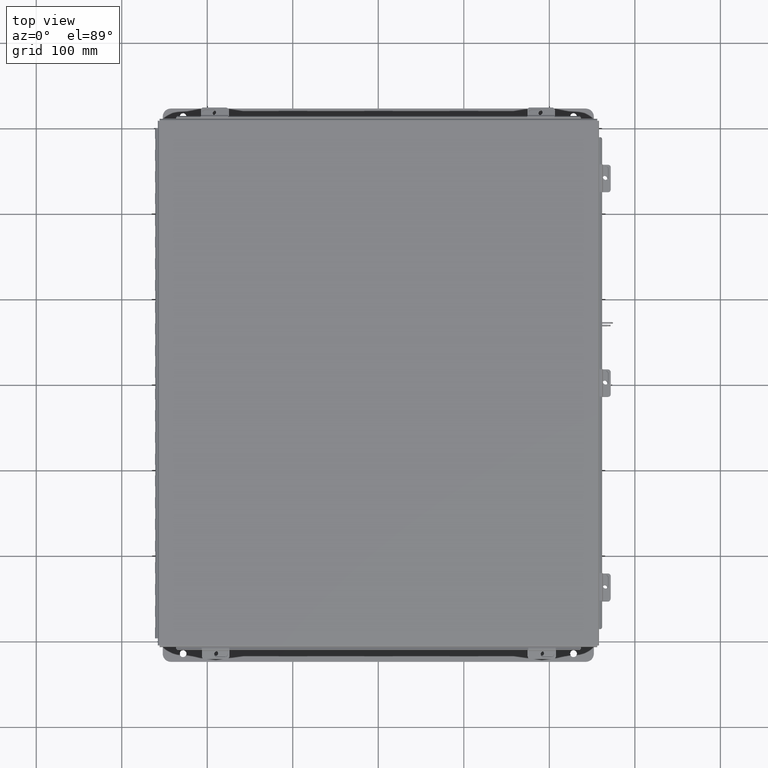
[diagram: clean part render]
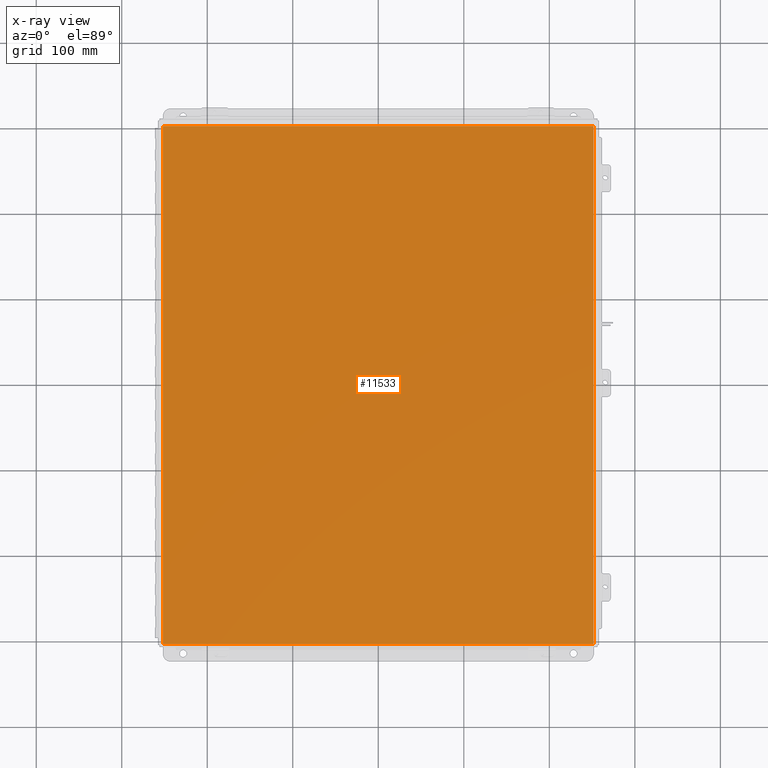
[diagram: x-ray — body ghosted, one internal face saturated and labeled with its STEP entity id]
A machine part, top view, then the same camera in x-ray: the body is ghosted and one INTERNAL B-rep face — a face not visible from any outside direction — is saturated and labeled: STEP entity #11533.
In plain terms, the highlighted planar face has unit normal (0, 0, -1).
Its self-contained STEP definition (entity closure, byte-faithful):
#660 = AXIS2_PLACEMENT_3D ( 'NONE', #23337, #12186, #1084 ) ;
#1084 = DIRECTION ( 'NONE',  ( -1.000000000000000000, 0.0000000000000000000, -0.0000000000000000000 ) ) ;
#2647 = ORIENTED_EDGE ( 'NONE', *, *, #5382, .F. ) ;
#3477 = VERTEX_POINT ( 'NONE', #15143 ) ;
#3975 = DIRECTION ( 'NONE',  ( -1.000000000000000000, -0.0000000000000000000, -0.0000000000000000000 ) ) ;
#4635 = PLANE ( 'NONE',  #660 ) ;
#5145 = DIRECTION ( 'NONE',  ( -0.0000000000000000000, 1.000000000000000000, -0.0000000000000000000 ) ) ;
#5382 = EDGE_CURVE ( 'NONE', #22558, #6124, #12044, .T. ) ;
#5942 = VECTOR ( 'NONE', #22359, 39.37007874015748100 ) ;
#6124 = VERTEX_POINT ( 'NONE', #8158 ) ;
#8158 = CARTESIAN_POINT ( 'NONE',  ( -9.912300000000000100, 11.92529999999999600, 4.268512490100411300E-017 ) ) ;
#8421 = CARTESIAN_POINT ( 'NONE',  ( 9.912300000000000100, 11.92529999999999300, 4.268512490100411300E-017 ) ) ;
#8732 = EDGE_CURVE ( 'NONE', #22558, #3477, #10880, .T. ) ;
#9263 = CARTESIAN_POINT ( 'NONE',  ( -9.912300000000000100, -11.92529999999999600, 4.268512490100411300E-017 ) ) ;
#9590 = EDGE_LOOP ( 'NONE', ( #19365, #14564, #2647, #12366 ) ) ;
#9834 = LINE ( 'NONE', #13234, #19108 ) ;
#10300 = EDGE_CURVE ( 'NONE', #19489, #3477, #20995, .T. ) ;
#10540 = VECTOR ( 'NONE', #13637, 39.37007874015748100 ) ;
#10880 = LINE ( 'NONE', #20471, #5942 ) ;
#11351 = FACE_OUTER_BOUND ( 'NONE', #9590, .T. ) ;
#11533 = ADVANCED_FACE ( 'NONE', ( #11351 ), #4635, .F. ) ;
#11694 = CARTESIAN_POINT ( 'NONE',  ( 9.912300000000000100, 11.92529999999999600, 4.268512490100411300E-017 ) ) ;
#12044 = LINE ( 'NONE', #12516, #15235 ) ;
#12186 = DIRECTION ( 'NONE',  ( 0.0000000000000000000, 0.0000000000000000000, -1.000000000000000000 ) ) ;
#12366 = ORIENTED_EDGE ( 'NONE', *, *, #8732, .T. ) ;
#12516 = CARTESIAN_POINT ( 'NONE',  ( -9.912300000000000100, -11.92530000000000000, 4.268512490100411300E-017 ) ) ;
#13234 = CARTESIAN_POINT ( 'NONE',  ( -10.00000000000000000, 11.92529999999999600, 0.0000000000000000000 ) ) ;
#13637 = DIRECTION ( 'NONE',  ( -0.0000000000000000000, -1.000000000000000000, -0.0000000000000000000 ) ) ;
#14564 = ORIENTED_EDGE ( 'NONE', *, *, #18583, .T. ) ;
#15143 = CARTESIAN_POINT ( 'NONE',  ( 9.912300000000000100, -11.92530000000000000, 4.268512490100411300E-017 ) ) ;
#15235 = VECTOR ( 'NONE', #5145, 39.37007874015748100 ) ;
#18583 = EDGE_CURVE ( 'NONE', #19489, #6124, #9834, .T. ) ;
#19108 = VECTOR ( 'NONE', #3975, 39.37007874015748100 ) ;
#19365 = ORIENTED_EDGE ( 'NONE', *, *, #10300, .F. ) ;
#19489 = VERTEX_POINT ( 'NONE', #8421 ) ;
#20471 = CARTESIAN_POINT ( 'NONE',  ( -10.00000000000000000, -11.92530000000000000, 0.0000000000000000000 ) ) ;
#20995 = LINE ( 'NONE', #11694, #10540 ) ;
#22359 = DIRECTION ( 'NONE',  ( 1.000000000000000000, 0.0000000000000000000, 0.0000000000000000000 ) ) ;
#22558 = VERTEX_POINT ( 'NONE', #9263 ) ;
#23337 = CARTESIAN_POINT ( 'NONE',  ( 0.0000000000000000000, 0.0000000000000000000, 0.0000000000000000000 ) ) ;